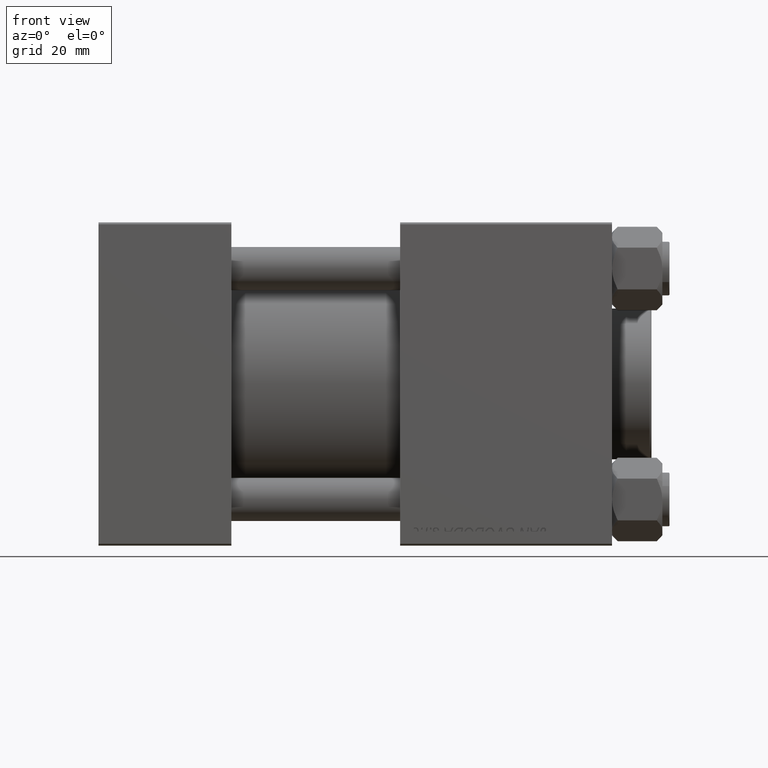
[diagram: clean part render]
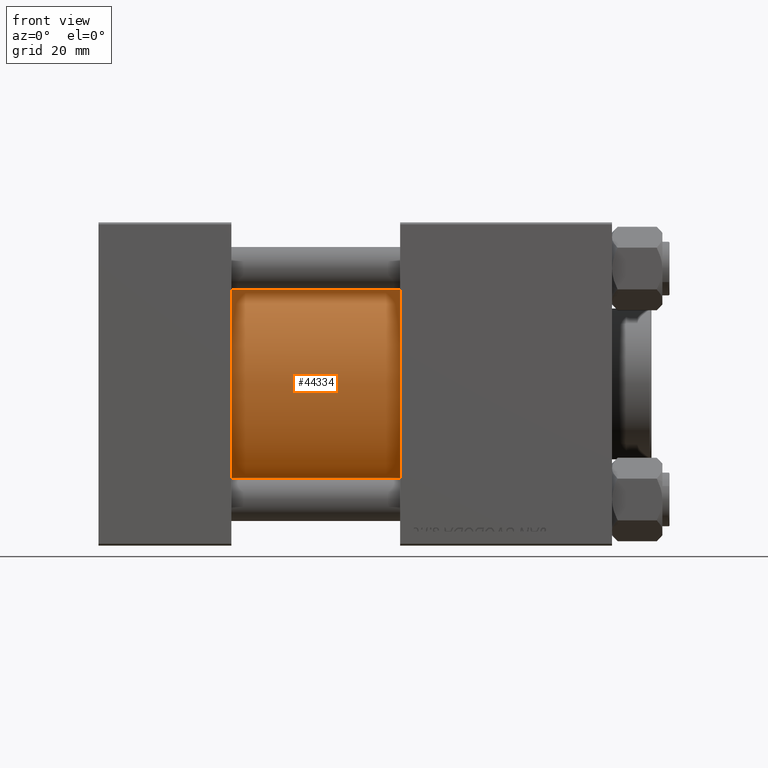
[diagram: same view with one face highlighted and labeled with its STEP entity id]
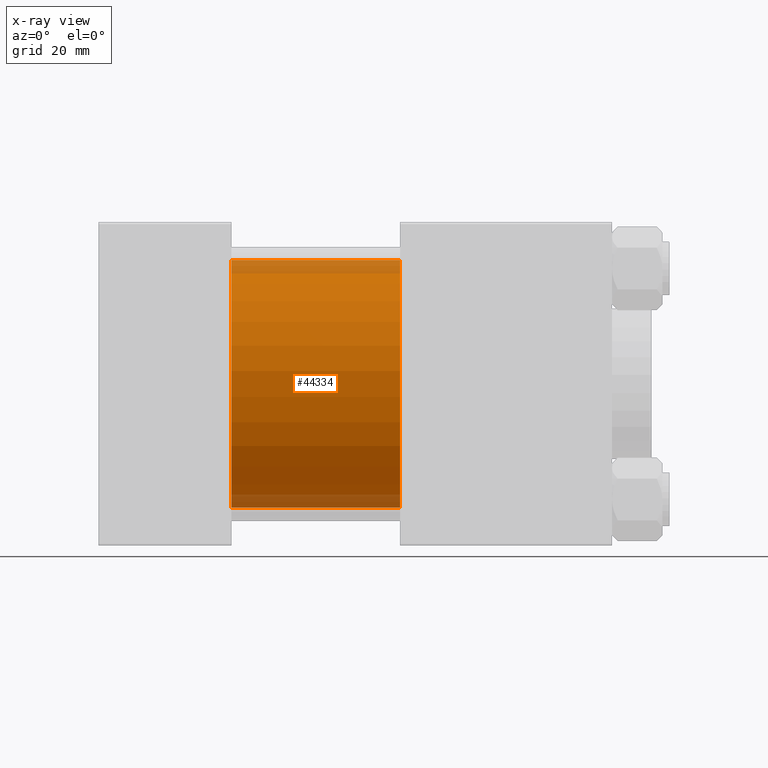
[diagram: x-ray of the same camera — body ghosted, the highlighted face saturated]
A machine part, front view. The second image highlights one B-rep face of the part: STEP entity #44334.
The next image is the same camera in x-ray: the body ghosted, the highlighted face saturated — about 11% of this face is hidden behind the body in this view.
In plain terms, the highlighted cylindrical surface (partial cylindrical patch) has radius 34.5 mm, axis along (-1, -0, -0).
Its self-contained STEP definition (entity closure, byte-faithful):
#5995 = DIRECTION ( 'NONE',  ( 0.000000000000000000, 0.000000000000000000, 1.000000000000000000 ) ) ;
#6480 = EDGE_CURVE ( 'NONE', #6821, #19458, #23900, .T. ) ;
#6562 = VECTOR ( 'NONE', #14949, 1000.000000000000000 ) ;
#6821 = VERTEX_POINT ( 'NONE', #45367 ) ;
#7044 = DIRECTION ( 'NONE',  ( 1.000000000000000000, 0.000000000000000000, 0.000000000000000000 ) ) ;
#7333 = ORIENTED_EDGE ( 'NONE', *, *, #38917, .T. ) ;
#8862 = ORIENTED_EDGE ( 'NONE', *, *, #42320, .F. ) ;
#9202 = DIRECTION ( 'NONE',  ( -1.000000000000000000, -0.000000000000000000, -0.000000000000000000 ) ) ;
#9381 = ORIENTED_EDGE ( 'NONE', *, *, #6480, .T. ) ;
#9519 = CARTESIAN_POINT ( 'NONE',  ( 83.99999999999998579, 0.000000000000000000, 34.49999999999999289 ) ) ;
#10611 = DIRECTION ( 'NONE',  ( -1.000000000000000000, -0.000000000000000000, -0.000000000000000000 ) ) ;
#14395 = FACE_OUTER_BOUND ( 'NONE', #29283, .T. ) ;
#14949 = DIRECTION ( 'NONE',  ( -1.000000000000000000, -0.000000000000000000, -0.000000000000000000 ) ) ;
#19458 = VERTEX_POINT ( 'NONE', #35791 ) ;
#20317 = AXIS2_PLACEMENT_3D ( 'NONE', #21966, #10611, #41089 ) ;
#21966 = CARTESIAN_POINT ( 'NONE',  ( 83.99999999999998579, 0.000000000000000000, 0.000000000000000000 ) ) ;
#22408 = CARTESIAN_POINT ( 'NONE',  ( 83.99999999999998579, 0.000000000000000000, 0.000000000000000000 ) ) ;
#22773 = LINE ( 'NONE', #38115, #6562 ) ;
#23900 = CIRCLE ( 'NONE', #25524, 34.49999999999999289 ) ;
#24300 = AXIS2_PLACEMENT_3D ( 'NONE', #22408, #7044, #47916 ) ;
#25524 = AXIS2_PLACEMENT_3D ( 'NONE', #36710, #28948, #5995 ) ;
#25885 = CIRCLE ( 'NONE', #24300, 34.49999999999999289 ) ;
#26503 = CYLINDRICAL_SURFACE ( 'NONE', #20317, 34.49999999999999289 ) ;
#28881 = CARTESIAN_POINT ( 'NONE',  ( 83.99999999999998579, 4.225031457058367344E-15, -34.49999999999999289 ) ) ;
#28948 = DIRECTION ( 'NONE',  ( 1.000000000000000000, -0.000000000000000000, 0.000000000000000000 ) ) ;
#29128 = LINE ( 'NONE', #28881, #35644 ) ;
#29283 = EDGE_LOOP ( 'NONE', ( #8862, #41364, #7333, #9381 ) ) ;
#35644 = VECTOR ( 'NONE', #9202, 1000.000000000000000 ) ;
#35791 = CARTESIAN_POINT ( 'NONE',  ( 37.00000000000000000, 4.225031457058367344E-15, -34.49999999999999289 ) ) ;
#36710 = CARTESIAN_POINT ( 'NONE',  ( 37.00000000000000000, 0.000000000000000000, 0.000000000000000000 ) ) ;
#38115 = CARTESIAN_POINT ( 'NONE',  ( 83.99999999999998579, 0.000000000000000000, 34.49999999999999289 ) ) ;
#38459 = VERTEX_POINT ( 'NONE', #9519 ) ;
#38917 = EDGE_CURVE ( 'NONE', #38459, #6821, #22773, .T. ) ;
#39088 = EDGE_CURVE ( 'NONE', #38459, #41177, #25885, .T. ) ;
#41089 = DIRECTION ( 'NONE',  ( 0.000000000000000000, 0.000000000000000000, 1.000000000000000000 ) ) ;
#41177 = VERTEX_POINT ( 'NONE', #45729 ) ;
#41364 = ORIENTED_EDGE ( 'NONE', *, *, #39088, .F. ) ;
#42320 = EDGE_CURVE ( 'NONE', #41177, #19458, #29128, .T. ) ;
#44334 = ADVANCED_FACE ( 'NONE', ( #14395 ), #26503, .T. ) ;
#45367 = CARTESIAN_POINT ( 'NONE',  ( 37.00000000000000000, 0.000000000000000000, 34.49999999999999289 ) ) ;
#45729 = CARTESIAN_POINT ( 'NONE',  ( 83.99999999999998579, 4.225031457058367344E-15, -34.49999999999999289 ) ) ;
#47916 = DIRECTION ( 'NONE',  ( 0.000000000000000000, 0.000000000000000000, -1.000000000000000000 ) ) ;